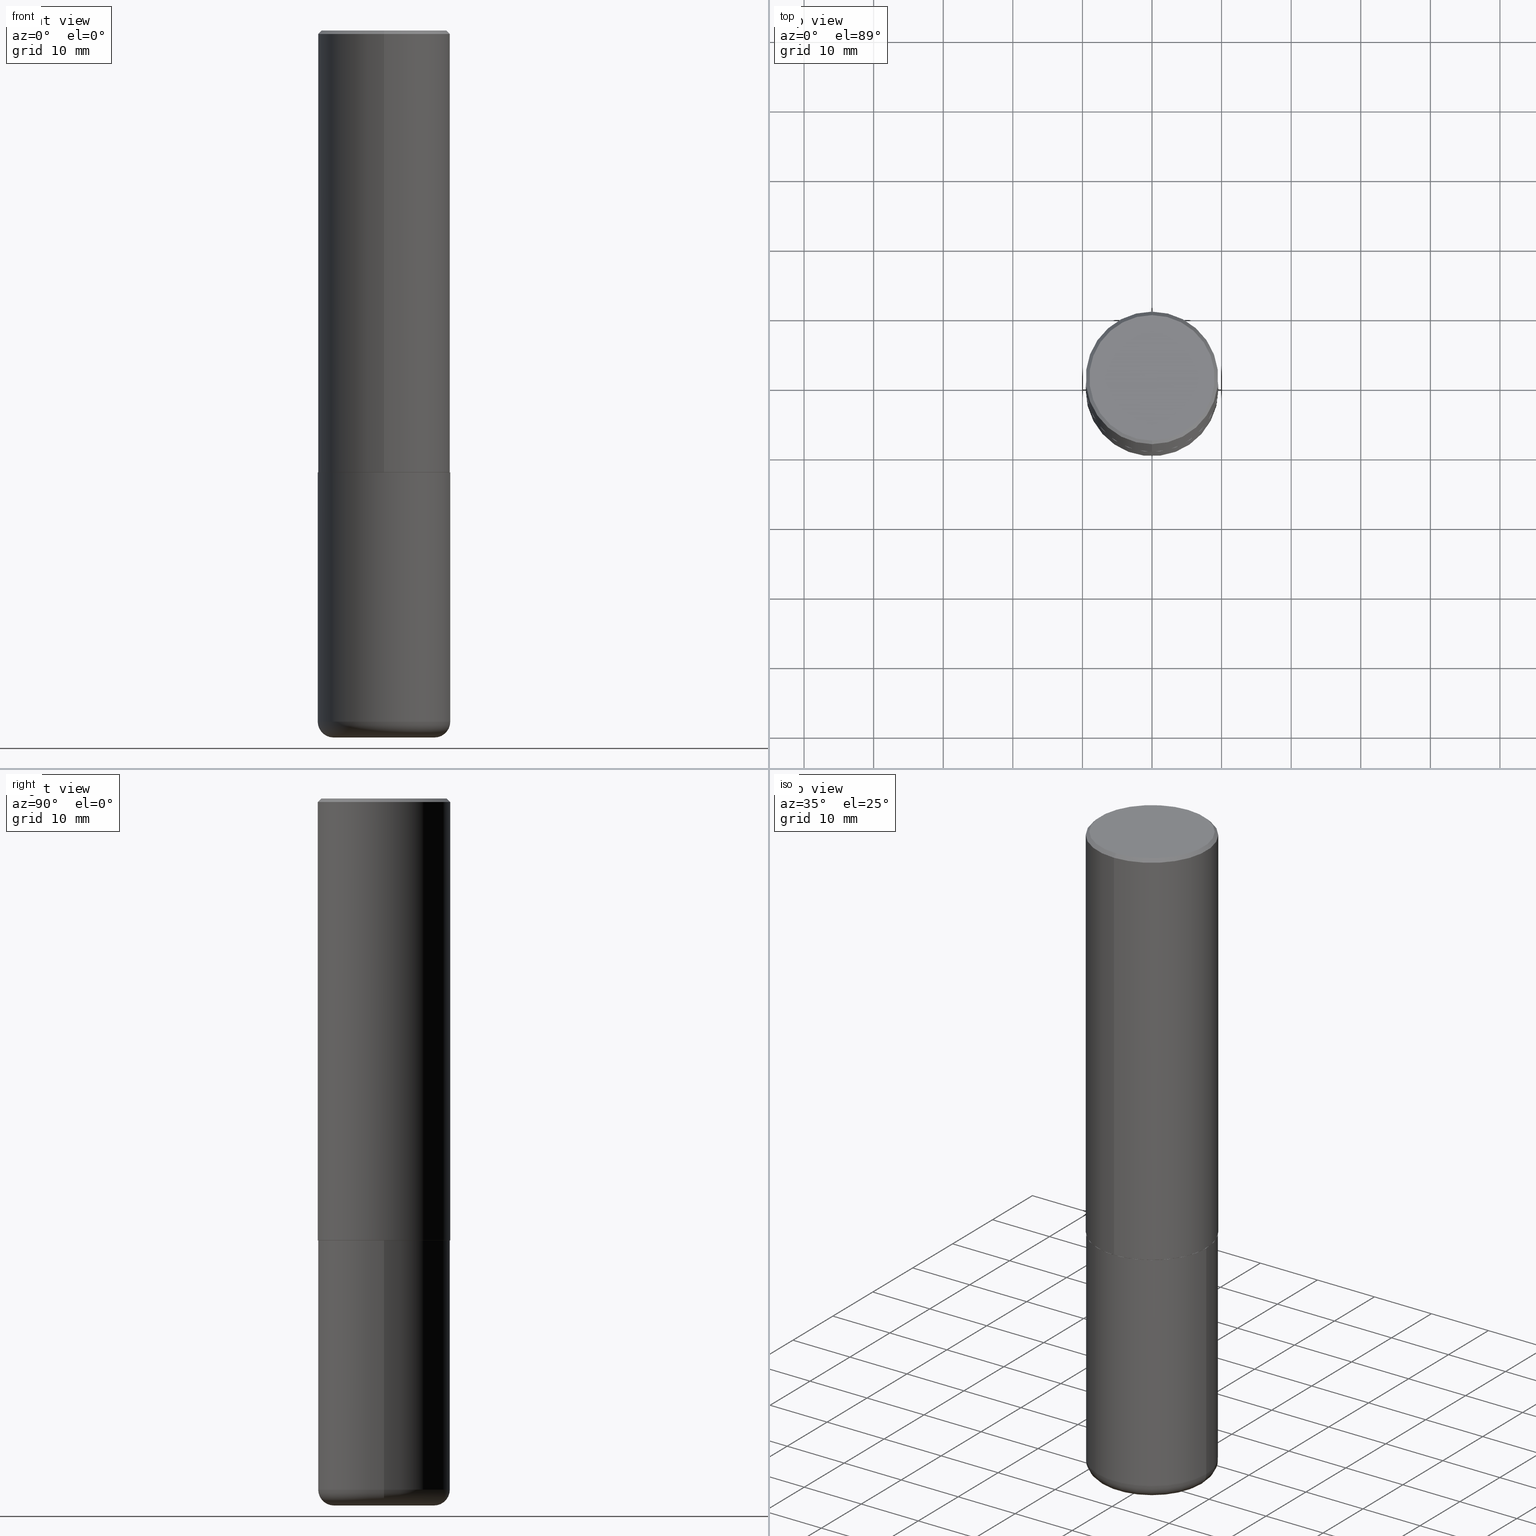
[diagram: canonical four-view strip — front | top / right | iso, engineering-drawing reading convention]
A machine part, canonical four-view strip (front | top / right | iso — engineering-drawing reading convention). The complete STEP part file that produces these views, byte-faithful:
ISO-10303-21;
HEADER;
FILE_DESCRIPTION (( 'STEP AP203' ),
    '1' );
FILE_NAME ('38390.STEP',
    '2024-03-03T02:29:07',
    ( '' ),
    ( '' ),
    'SwSTEP 2.0',
    'SolidWorks 2023',
    '' );
FILE_SCHEMA (( 'CONFIG_CONTROL_DESIGN' ));
ENDSEC;

DATA;
#1 = CARTESIAN_POINT ( 'NONE',  ( 2.548781377355486718E-15, 0.3549999999999997602, -1.008976200823893402E-15 ) ) ;
#2 = ORIENTED_EDGE ( 'NONE', *, *, #330, .T. ) ;
#3 = SHAPE_DEFINITION_REPRESENTATION ( #379, #44 ) ;
#4 = CARTESIAN_POINT ( 'NONE',  ( 9.561783032183883600E-29, -1.365169203487670064E-14, -3.910000000000000142 ) ) ;
#5 = CIRCLE ( 'NONE', #203, 0.3750000000000002776 ) ;
#6 = FACE_OUTER_BOUND ( 'NONE', #83, .T. ) ;
#7 = EDGE_LOOP ( 'NONE', ( #286, #157 ) ) ;
#8 = CARTESIAN_POINT ( 'NONE',  ( 9.561783032183883600E-29, -1.365169203487670064E-14, -3.910000000000000142 ) ) ;
#9 = AXIS2_PLACEMENT_3D ( 'NONE', #140, #389, #101 ) ;
#10 = CC_DESIGN_APPROVAL ( #367, ( #318 ) ) ;
#11 = DIRECTION ( 'NONE',  ( 2.444395862887114472E-29, -3.493017854714053009E-15, -1.000000000000000000 ) ) ;
#12 = CARTESIAN_POINT ( 'NONE',  ( 0.3749999999999999445, -2.618611004132349622E-15, 1.828566290923475642E-29 ) ) ;
#13 = ADVANCED_FACE ( 'NONE', ( #327 ), #171, .T. ) ;
#14 = CARTESIAN_POINT ( 'NONE',  ( 0.2850000000000000311, -1.595606971851316740E-14, -4.000000000000000000 ) ) ;
#15 = CARTESIAN_POINT ( 'NONE',  ( 6.113672015462840371E-29, -8.728703347107863365E-15, -2.499999999999999556 ) ) ;
#16 = ORIENTED_EDGE ( 'NONE', *, *, #109, .F. ) ;
#17 = DIRECTION ( 'NONE',  ( -2.445468806185136597E-29, 3.491481338843145583E-15, 1.000000000000000000 ) ) ;
#18 = ORIENTED_EDGE ( 'NONE', *, *, #370, .F. ) ;
#19 = ADVANCED_FACE ( 'NONE', ( #58 ), #170, .T. ) ;
#20 = CIRCLE ( 'NONE', #403, 0.08999999999999992728 ) ;
#21 = AXIS2_PLACEMENT_3D ( 'NONE', #368, #110, #24 ) ;
#22 = DIRECTION ( 'NONE',  ( 5.024295867787889629E-15, 0.7071067811865257013, 0.7071067811865691111 ) ) ;
#23 = ORIENTED_EDGE ( 'NONE', *, *, #330, .F. ) ;
#24 = DIRECTION ( 'NONE',  ( -6.982962677686266711E-15, -1.000000000000000000, 3.493017854714052220E-15 ) ) ;
#25 = ORIENTED_EDGE ( 'NONE', *, *, #164, .F. ) ;
#26 = FACE_OUTER_BOUND ( 'NONE', #65, .T. ) ;
#27 = ADVANCED_FACE ( 'NONE', ( #26 ), #361, .T. ) ;
#28 = FACE_OUTER_BOUND ( 'NONE', #32, .T. ) ;
#29 = AXIS2_PLACEMENT_3D ( 'NONE', #15, #17, #150 ) ;
#30 = CARTESIAN_POINT ( 'NONE',  ( 2.478951750578623026E-15, 0.3549999999999997602, -1.124498769623690920E-15 ) ) ;
#31 = APPLICATION_PROTOCOL_DEFINITION ( 'international standard', 'config_control_design', 1994, #242 ) ;
#32 = EDGE_LOOP ( 'NONE', ( #343, #93 ) ) ;
#33 = PRODUCT_RELATED_PRODUCT_CATEGORY ( 'detail', '', ( #125 ) ) ;
#34 = PERSON_AND_ORGANIZATION ( #237, #76 ) ;
#35 = FACE_OUTER_BOUND ( 'NONE', #7, .T. ) ;
#36 = VECTOR ( 'NONE', #70, 39.37007874015748143 ) ;
#37 = PERSON_AND_ORGANIZATION ( #237, #76 ) ;
#38 = CC_DESIGN_DATE_AND_TIME_ASSIGNMENT ( #382, #92, ( #66 ) ) ;
#39 = DIRECTION ( 'NONE',  ( 1.000000000000000000, -6.982962677686263555E-15, 0.000000000000000000 ) ) ;
#40 = CIRCLE ( 'NONE', #108, 0.3749999999999999445 ) ;
#41 = AXIS2_PLACEMENT_3D ( 'NONE', #218, #408, #118 ) ;
#42 = CARTESIAN_POINT ( 'NONE',  ( 0.2850000000000000311, -1.564183639801728729E-14, -3.910000000000000142 ) ) ;
#43 = EDGE_CURVE ( 'NONE', #117, #185, #383, .T. ) ;
#44 = ADVANCED_BREP_SHAPE_REPRESENTATION ( '38390', ( #390, #254, #236 ), #152 ) ;
#45 = CIRCLE ( 'NONE', #146, 0.3750000000000000555 ) ;
#46 = CARTESIAN_POINT ( 'NONE',  ( -5.647657784886327300E-45, 8.070447908802484547E-31, 2.310451375995943946E-16 ) ) ;
#47 = ORIENTED_EDGE ( 'NONE', *, *, #56, .T. ) ;
#48 = ORIENTED_EDGE ( 'NONE', *, *, #90, .T. ) ;
#49 = CARTESIAN_POINT ( 'NONE',  ( 6.110989657217786461E-29, -8.732544636785133509E-15, -2.500000000000000000 ) ) ;
#50 = ORIENTED_EDGE ( 'NONE', *, *, #131, .T. ) ;
#51 = APPROVAL_PERSON_ORGANIZATION ( #37, #367, #233 ) ;
#52 = CARTESIAN_POINT ( 'NONE',  ( -0.3750000000000000555, -8.525662431891907096E-15, -2.499999999999999556 ) ) ;
#53 = ORIENTED_EDGE ( 'NONE', *, *, #176, .F. ) ;
#54 = ORIENTED_EDGE ( 'NONE', *, *, #246, .F. ) ;
#55 = COORDINATED_UNIVERSAL_TIME_OFFSET ( 5, 0, .BEHIND. ) ;
#56 = EDGE_CURVE ( 'NONE', #391, #313, #135, .T. ) ;
#57 =( LENGTH_UNIT ( ) NAMED_UNIT ( * ) SI_UNIT ( $, .METRE. ) );
#58 = FACE_OUTER_BOUND ( 'NONE', #81, .T. ) ;
#59 = COORDINATED_UNIVERSAL_TIME_OFFSET ( 5, 0, .BEHIND. ) ;
#60 = DIRECTION ( 'NONE',  ( 1.000000000000000000, -6.982962677686266711E-15, 4.876176775795935793E-29 ) ) ;
#61 = CIRCLE ( 'NONE', #306, 0.3749999999999999445 ) ;
#62 = VECTOR ( 'NONE', #184, 39.37007874015748143 ) ;
#63 = DIRECTION ( 'NONE',  ( 1.000000000000000000, -6.982962677686266711E-15, 0.000000000000000000 ) ) ;
#64 = PERSON_AND_ORGANIZATION_ROLE ( 'creator' ) ;
#65 = EDGE_LOOP ( 'NONE', ( #217, #244 ) ) ;
#66 = PRODUCT_DEFINITION ( 'UNKNOWN', '', #318, #72 ) ;
#67 = CARTESIAN_POINT ( 'NONE',  ( 0.000000000000000000, 0.000000000000000000, 0.000000000000000000 ) ) ;
#68 = ORIENTED_EDGE ( 'NONE', *, *, #341, .T. ) ;
#69 = EDGE_CURVE ( 'NONE', #332, #347, #202, .T. ) ;
#70 = DIRECTION ( 'NONE',  ( -2.445468806185136877E-29, 3.491481338843145188E-15, 1.000000000000000000 ) ) ;
#71 = AXIS2_PLACEMENT_3D ( 'NONE', #4, #268, #295 ) ;
#72 = DESIGN_CONTEXT ( 'detailed design', #242, 'design' ) ;
#73 = CARTESIAN_POINT ( 'NONE',  ( 4.888791725774251015E-31, -6.986035709428135453E-17, -0.02000000000000008715 ) ) ;
#74 = DIRECTION ( 'NONE',  ( -6.982962677686266711E-15, -1.000000000000000000, 2.921762560068730595E-15 ) ) ;
#75 = DIRECTION ( 'NONE',  ( 1.000000000000000000, -6.982962677686273810E-15, 0.000000000000000000 ) ) ;
#76 = ORGANIZATION ( 'UNSPECIFIED', 'UNSPECIFIED', '' ) ;
#77 = UNCERTAINTY_MEASURE_WITH_UNIT (LENGTH_MEASURE( 1.000000000000000082E-05 ), #191, 'distance_accuracy_value', 'NONE');
#78 = DIRECTION ( 'NONE',  ( -6.982962677686266711E-15, -1.000000000000000000, 2.913971193241878794E-15 ) ) ;
#79 = ORIENTED_EDGE ( 'NONE', *, *, #289, .F. ) ;
#80 = DIRECTION ( 'NONE',  ( -2.444395862887114472E-29, 3.493017854714053009E-15, 1.000000000000000000 ) ) ;
#81 = EDGE_LOOP ( 'NONE', ( #315, #317, #373, #412 ) ) ;
#82 = CARTESIAN_POINT ( 'NONE',  ( 2.657429831742835431E-15, 0.3739999999999912839, -2.500000000000001332 ) ) ;
#83 = EDGE_LOOP ( 'NONE', ( #128, #48, #320, #25 ) ) ;
#84 = DIRECTION ( 'NONE',  ( 7.105427357601001859E-15, 1.000000000000000000, -3.491481338843145583E-15 ) ) ;
#85 = ORIENTED_EDGE ( 'NONE', *, *, #272, .T. ) ;
#86 = AXIS2_PLACEMENT_3D ( 'NONE', #226, #197, #355 ) ;
#87 = CONICAL_SURFACE ( 'NONE', #227, 0.3750000000000000555, 0.7853981633974471688 ) ;
#88 =( NAMED_UNIT ( * ) PLANE_ANGLE_UNIT ( ) SI_UNIT ( $, .RADIAN. ) );
#89 = EDGE_LOOP ( 'NONE', ( #377, #151, #54, #53 ) ) ;
#90 = EDGE_CURVE ( 'NONE', #182, #228, #161, .T. ) ;
#91 = PERSON_AND_ORGANIZATION ( #237, #76 ) ;
#92 = DATE_TIME_ROLE ( 'creation_date' ) ;
#93 = ORIENTED_EDGE ( 'NONE', *, *, #309, .F. ) ;
#94 = PERSON_AND_ORGANIZATION_ROLE ( 'design_owner' ) ;
#95 = FACE_OUTER_BOUND ( 'NONE', #284, .T. ) ;
#96 = ADVANCED_FACE ( 'NONE', ( #35 ), #102, .F. ) ;
#97 = AXIS2_PLACEMENT_3D ( 'NONE', #99, #262, #269 ) ;
#98 = VECTOR ( 'NONE', #22, 39.37007874015748854 ) ;
#99 = CARTESIAN_POINT ( 'NONE',  ( 9.781875224740546387E-29, -1.396592535537258233E-14, -4.000000000000000000 ) ) ;
#100 = APPROVAL_ROLE ( '' ) ;
#101 = DIRECTION ( 'NONE',  ( -1.000000000000000000, 6.982962677686265922E-15, -4.876176775795935793E-29 ) ) ;
#102 = PLANE ( 'NONE',  #9 ) ;
#103 = ADVANCED_FACE ( 'NONE', ( #95 ), #290, .F. ) ;
#104 = CARTESIAN_POINT ( 'NONE',  ( 0.3750000000000000555, -1.134731435124021180E-14, -2.499999999999999556 ) ) ;
#105 = EDGE_CURVE ( 'NONE', #400, #185, #229, .T. ) ;
#106 = CARTESIAN_POINT ( 'NONE',  ( -0.2850000000000000311, -1.146401766711631116E-14, -4.000000000000000000 ) ) ;
#107 = CLOSED_SHELL ( 'NONE', ( #362, #376, #96, #210, #413, #27 ) ) ;
#108 = AXIS2_PLACEMENT_3D ( 'NONE', #8, #143, #39 ) ;
#109 = EDGE_CURVE ( 'NONE', #148, #332, #61, .T. ) ;
#110 = DIRECTION ( 'NONE',  ( -2.444395862887114472E-29, 3.493017854714053009E-15, 1.000000000000000000 ) ) ;
#111 = EDGE_LOOP ( 'NONE', ( #345, #120, #85, #18 ) ) ;
#112 = DIRECTION ( 'NONE',  ( -2.444395862887114472E-29, 3.493017854714053009E-15, 1.000000000000000000 ) ) ;
#113 = EDGE_LOOP ( 'NONE', ( #375, #253, #222, #79 ) ) ;
#114 = AXIS2_PLACEMENT_3D ( 'NONE', #294, #418, #384 ) ;
#115 = AXIS2_PLACEMENT_3D ( 'NONE', #49, #112, #241 ) ;
#116 = CARTESIAN_POINT ( 'NONE',  ( 2.660982545421636724E-15, 0.3739999999999912839, -2.500000000000001332 ) ) ;
#117 = VERTEX_POINT ( 'NONE', #416 ) ;
#118 = DIRECTION ( 'NONE',  ( 1.000000000000000000, -6.982962677686266711E-15, 0.000000000000000000 ) ) ;
#119 = APPROVAL ( #198, 'UNSPECIFIED' ) ;
#120 = ORIENTED_EDGE ( 'NONE', *, *, #394, .T. ) ;
#121 = PERSON_AND_ORGANIZATION_ROLE ( 'classification_officer' ) ;
#122 = CARTESIAN_POINT ( 'NONE',  ( -0.2850000000000000311, -1.162664523796041410E-14, -3.910000000000000142 ) ) ;
#123 = ADVANCED_FACE ( 'NONE', ( #28 ), #163, .F. ) ;
#124 = EDGE_LOOP ( 'NONE', ( #406, #68, #50, #189 ) ) ;
#125 = PRODUCT ( '38390', '38390', '', ( #261 ) ) ;
#126 = APPROVAL_PERSON_ORGANIZATION ( #221, #155, #100 ) ;
#127 = COORDINATED_UNIVERSAL_TIME_OFFSET ( 5, 0, .BEHIND. ) ;
#128 = ORIENTED_EDGE ( 'NONE', *, *, #337, .F. ) ;
#129 = CARTESIAN_POINT ( 'NONE',  ( -2.611628041454602471E-15, -0.3740000000000087699, -2.499999999999999112 ) ) ;
#130 = CARTESIAN_POINT ( 'NONE',  ( 6.110989657217786461E-29, -8.732544636785133509E-15, -2.500000000000000000 ) ) ;
#131 = EDGE_CURVE ( 'NONE', #183, #185, #174, .T. ) ;
#132 = PERSON_AND_ORGANIZATION_ROLE ( 'design_supplier' ) ;
#133 = CC_DESIGN_PERSON_AND_ORGANIZATION_ASSIGNMENT ( #266, #121, ( #220 ) ) ;
#134 = CARTESIAN_POINT ( 'NONE',  ( 0.000000000000000000, 0.000000000000000000, 0.000000000000000000 ) ) ;
#135 = CIRCLE ( 'NONE', #397, 0.3739999999999999991 ) ;
#136 = CONICAL_SURFACE ( 'NONE', #213, 0.3739999999999999991, 0.7853981633974141952 ) ;
#137 = DIRECTION ( 'NONE',  ( -6.982962677686266711E-15, -1.000000000000000000, 2.921762560068730595E-15 ) ) ;
#138 = APPROVAL_STATUS ( 'not_yet_approved' ) ;
#139 = EDGE_CURVE ( 'NONE', #228, #148, #20, .T. ) ;
#140 = CARTESIAN_POINT ( 'NONE',  ( 6.113672015462840371E-29, -8.728703347107863365E-15, -2.499999999999999556 ) ) ;
#141 = ADVANCED_FACE ( 'NONE', ( #308 ), #175, .T. ) ;
#142 = AXIS2_PLACEMENT_3D ( 'NONE', #167, #352, #322 ) ;
#143 = DIRECTION ( 'NONE',  ( -2.445468806185136597E-29, 3.491481338843145583E-15, 1.000000000000000000 ) ) ;
#144 = DIRECTION ( 'NONE',  ( 6.982962677686265922E-15, 1.000000000000000000, -3.494488891895536035E-15 ) ) ;
#145 = CYLINDRICAL_SURFACE ( 'NONE', #386, 0.3749999999999999445 ) ;
#146 = AXIS2_PLACEMENT_3D ( 'NONE', #401, #399, #405 ) ;
#147 = CARTESIAN_POINT ( 'NONE',  ( -2.618611004132351200E-15, -0.3750000000000001665, 1.309881695517770421E-15 ) ) ;
#148 = VERTEX_POINT ( 'NONE', #205 ) ;
#149 = ORIENTED_EDGE ( 'NONE', *, *, #43, .T. ) ;
#150 = DIRECTION ( 'NONE',  ( 1.000000000000000000, -6.982962677686264344E-15, 0.000000000000000000 ) ) ;
#151 = ORIENTED_EDGE ( 'NONE', *, *, #69, .T. ) ;
#152 =( GEOMETRIC_REPRESENTATION_CONTEXT ( 3 ) GLOBAL_UNCERTAINTY_ASSIGNED_CONTEXT ( ( #77 ) ) GLOBAL_UNIT_ASSIGNED_CONTEXT ( ( #191, #88, #349 ) ) REPRESENTATION_CONTEXT ( 'NONE', 'WORKASPACE' ) );
#153 = DIRECTION ( 'NONE',  ( -1.000000000000000000, 7.105427357600996337E-15, 0.000000000000000000 ) ) ;
#154 = VERTEX_POINT ( 'NONE', #104 ) ;
#155 = APPROVAL ( #138, 'UNSPECIFIED' ) ;
#156 = CYLINDRICAL_SURFACE ( 'NONE', #301, 0.3749999999999999445 ) ;
#157 = ORIENTED_EDGE ( 'NONE', *, *, #289, .T. ) ;
#158 = APPROVAL_DATE_TIME ( #169, #155 ) ;
#159 = DIRECTION ( 'NONE',  ( 2.444395862887114472E-29, -3.493017854714053009E-15, -1.000000000000000000 ) ) ;
#160 = DATE_AND_TIME ( #325, #417 ) ;
#161 = CIRCLE ( 'NONE', #274, 0.2850000000000000311 ) ;
#162 = LOCAL_TIME ( 21, 29, 7.000000000000000000, #55 ) ;
#163 = PLANE ( 'NONE',  #114 ) ;
#164 = EDGE_CURVE ( 'NONE', #332, #148, #40, .T. ) ;
#165 = DIRECTION ( 'NONE',  ( -6.982962677686266711E-15, -1.000000000000000000, 2.913971193241878794E-15 ) ) ;
#166 = DIRECTION ( 'NONE',  ( -2.444395862887114472E-29, 3.493017854714053009E-15, 1.000000000000000000 ) ) ;
#167 = CARTESIAN_POINT ( 'NONE',  ( 4.888791725774251015E-31, -6.986035709428135453E-17, -0.02000000000000008715 ) ) ;
#168 = DIRECTION ( 'NONE',  ( -2.444395862887114192E-29, 3.493017854714053009E-15, 1.000000000000000000 ) ) ;
#169 = DATE_AND_TIME ( #188, #398 ) ;
#170 = CONICAL_SURFACE ( 'NONE', #179, 0.3739999999999999991, 0.7853981633974141952 ) ;
#171 = CYLINDRICAL_SURFACE ( 'NONE', #300, 0.3750000000000001665 ) ;
#172 = ADVANCED_FACE ( 'NONE', ( #365 ), #136, .T. ) ;
#173 = FACE_OUTER_BOUND ( 'NONE', #321, .T. ) ;
#174 = CIRCLE ( 'NONE', #86, 0.3750000000000000555 ) ;
#175 = CONICAL_SURFACE ( 'NONE', #291, 0.3750000000000000555, 0.7853981633974471688 ) ;
#176 = EDGE_CURVE ( 'NONE', #148, #154, #396, .T. ) ;
#177 = CARTESIAN_POINT ( 'NONE',  ( 0.000000000000000000, 0.000000000000000000, 0.000000000000000000 ) ) ;
#178 = FACE_OUTER_BOUND ( 'NONE', #187, .T. ) ;
#179 = AXIS2_PLACEMENT_3D ( 'NONE', #299, #265, #137 ) ;
#180 = LOCAL_TIME ( 21, 29, 7.000000000000000000, #127 ) ;
#181 = LINE ( 'NONE', #311, #324 ) ;
#182 = VERTEX_POINT ( 'NONE', #106 ) ;
#183 = VERTEX_POINT ( 'NONE', #235 ) ;
#184 = DIRECTION ( 'NONE',  ( -2.444395862887114192E-29, 3.493017854714053009E-15, 1.000000000000000000 ) ) ;
#185 = VERTEX_POINT ( 'NONE', #209 ) ;
#186 = DIRECTION ( 'NONE',  ( -4.851104656540957964E-15, -0.7071067811865491270, -0.7071067811865459074 ) ) ;
#187 = EDGE_LOOP ( 'NONE', ( #240, #23, #402, #277 ) ) ;
#188 = CALENDAR_DATE ( 2024, 2, 3 ) ;
#189 = ORIENTED_EDGE ( 'NONE', *, *, #105, .F. ) ;
#190 = CC_DESIGN_PERSON_AND_ORGANIZATION_ASSIGNMENT ( #34, #94, ( #125 ) ) ;
#191 =( CONVERSION_BASED_UNIT ( 'INCH', #331 ) LENGTH_UNIT ( ) NAMED_UNIT ( #381 ) );
#192 = DIRECTION ( 'NONE',  ( -2.445468806185136597E-29, 3.491481338843145583E-15, 1.000000000000000000 ) ) ;
#193 = AXIS2_PLACEMENT_3D ( 'NONE', #298, #302, #264 ) ;
#194 = AXIS2_PLACEMENT_3D ( 'NONE', #283, #411, #374 ) ;
#195 = FACE_OUTER_BOUND ( 'NONE', #342, .T. ) ;
#196 = CC_DESIGN_SECURITY_CLASSIFICATION ( #220, ( #318 ) ) ;
#197 = DIRECTION ( 'NONE',  ( -2.444395862887114472E-29, 3.493017854714053009E-15, 1.000000000000000000 ) ) ;
#198 = APPROVAL_STATUS ( 'not_yet_approved' ) ;
#199 = APPLICATION_CONTEXT ( 'configuration controlled 3d designs of mechanical parts and assemblies' ) ;
#200 = DIRECTION ( 'NONE',  ( 0.000000000000000000, 0.000000000000000000, 1.000000000000000000 ) ) ;
#201 = DIRECTION ( 'NONE',  ( -2.444395862887114472E-29, 3.493017854714053009E-15, 1.000000000000000000 ) ) ;
#202 = LINE ( 'NONE', #329, #36 ) ;
#203 = AXIS2_PLACEMENT_3D ( 'NONE', #378, #80, #78 ) ;
#204 = CARTESIAN_POINT ( 'NONE',  ( 9.561783032183883600E-29, -1.365169203487670064E-14, -3.910000000000000142 ) ) ;
#205 = CARTESIAN_POINT ( 'NONE',  ( 0.3749999999999999445, -1.627030303900904751E-14, -3.910000000000000142 ) ) ;
#206 = DIRECTION ( 'NONE',  ( -2.445468806185136877E-29, 3.491481338843145188E-15, 1.000000000000000000 ) ) ;
#207 = CC_DESIGN_PERSON_AND_ORGANIZATION_ASSIGNMENT ( #410, #132, ( #318 ) ) ;
#208 = CIRCLE ( 'NONE', #372, 0.08999999999999992728 ) ;
#209 = CARTESIAN_POINT ( 'NONE',  ( 2.618611004132350411E-15, 0.3749999999999999445, -0.02000000000000139513 ) ) ;
#210 = ADVANCED_FACE ( 'NONE', ( #338 ), #145, .T. ) ;
#211 = DIRECTION ( 'NONE',  ( -6.982962677686266711E-15, -1.000000000000000000, 3.493017854714052220E-15 ) ) ;
#212 = ORIENTED_EDGE ( 'NONE', *, *, #339, .T. ) ;
#213 = AXIS2_PLACEMENT_3D ( 'NONE', #393, #395, #74 ) ;
#214 = ORIENTED_EDGE ( 'NONE', *, *, #139, .F. ) ;
#215 = DIRECTION ( 'NONE',  ( 2.444395862887114472E-29, -3.493017854714053009E-15, -1.000000000000000000 ) ) ;
#216 = ADVANCED_FACE ( 'NONE', ( #173 ), #276, .T. ) ;
#217 = ORIENTED_EDGE ( 'NONE', *, *, #339, .F. ) ;
#218 = CARTESIAN_POINT ( 'NONE',  ( 9.781875224740546387E-29, -1.396592535537258233E-14, -4.000000000000000000 ) ) ;
#219 = ORIENTED_EDGE ( 'NONE', *, *, #312, .T. ) ;
#220 = SECURITY_CLASSIFICATION ( '', '', #287 ) ;
#221 = PERSON_AND_ORGANIZATION ( #237, #76 ) ;
#222 = ORIENTED_EDGE ( 'NONE', *, *, #176, .T. ) ;
#223 = COORDINATED_UNIVERSAL_TIME_OFFSET ( 5, 0, .BEHIND. ) ;
#224 = CARTESIAN_POINT ( 'NONE',  ( 6.108545261354898806E-29, -8.729051618930418030E-15, -2.498999999999999666 ) ) ;
#225 = DIRECTION ( 'NONE',  ( -6.982962677686266711E-15, -1.000000000000000000, 2.921762560068730595E-15 ) ) ;
#226 = CARTESIAN_POINT ( 'NONE',  ( 4.888791725774251015E-31, -6.986035709428135453E-17, -0.02000000000000008715 ) ) ;
#227 = AXIS2_PLACEMENT_3D ( 'NONE', #249, #215, #278 ) ;
#228 = VERTEX_POINT ( 'NONE', #14 ) ;
#229 = LINE ( 'NONE', #360, #363 ) ;
#230 = DIRECTION ( 'NONE',  ( 4.937700262164541731E-15, 0.7071067811865442421, -0.7071067811865507924 ) ) ;
#231 = CIRCLE ( 'NONE', #115, 0.3739999999999999991 ) ;
#232 = EDGE_CURVE ( 'NONE', #380, #400, #275, .T. ) ;
#233 = APPROVAL_ROLE ( '' ) ;
#234 = CLOSED_SHELL ( 'NONE', ( #172, #216, #141, #251, #13, #19, #123, #103 ) ) ;
#235 = CARTESIAN_POINT ( 'NONE',  ( -2.572686749164323547E-15, -0.3750000000000001110, -0.01999999999999877570 ) ) ;
#236 = AXIS2_PLACEMENT_3D ( 'NONE', #67, #200, #328 ) ;
#237 = PERSON ( 'UNSPECIFIED', 'UNSPECIFIED', 'UNSPECIFIED', ('UNSPECIFIED'), ('UNSPECIFIED'), ('UNSPECIFIED') ) ;
#238 = DIRECTION ( 'NONE',  ( 1.000000000000000000, -6.982962677686266711E-15, 4.876176775795935793E-29 ) ) ;
#239 = EDGE_CURVE ( 'NONE', #391, #369, #181, .T. ) ;
#240 = ORIENTED_EDGE ( 'NONE', *, *, #341, .F. ) ;
#241 = DIRECTION ( 'NONE',  ( -6.982962677686266711E-15, -1.000000000000000000, 2.921762560068730595E-15 ) ) ;
#242 = APPLICATION_CONTEXT ( 'configuration controlled 3d designs of mechanical parts and assemblies' ) ;
#243 = AXIS2_PLACEMENT_3D ( 'NONE', #30, #159, #323 ) ;
#244 = ORIENTED_EDGE ( 'NONE', *, *, #90, .F. ) ;
#245 = CIRCLE ( 'NONE', #21, 0.3549999999999997602 ) ;
#246 = EDGE_CURVE ( 'NONE', #154, #347, #366, .T. ) ;
#247 = LINE ( 'NONE', #82, #98 ) ;
#248 = ORIENTED_EDGE ( 'NONE', *, *, #232, .T. ) ;
#249 = CARTESIAN_POINT ( 'NONE',  ( 4.888791725774251015E-31, -6.986035709428135453E-17, -0.02000000000000008715 ) ) ;
#250 = ORIENTED_EDGE ( 'NONE', *, *, #312, .F. ) ;
#251 = ADVANCED_FACE ( 'NONE', ( #178 ), #87, .T. ) ;
#252 = CARTESIAN_POINT ( 'NONE',  ( -2.572686749164323547E-15, -0.3750000000000001110, -0.01999999999999877570 ) ) ;
#253 = ORIENTED_EDGE ( 'NONE', *, *, #164, .T. ) ;
#254 = MANIFOLD_SOLID_BREP ( 'Body-Move/Copy2[2]', #234 ) ;
#255 = CC_DESIGN_DATE_AND_TIME_ASSIGNMENT ( #292, #257, ( #220 ) ) ;
#256 = AXIS2_PLACEMENT_3D ( 'NONE', #46, #314, #211 ) ;
#257 = DATE_TIME_ROLE ( 'classification_date' ) ;
#258 = CALENDAR_DATE ( 2024, 2, 3 ) ;
#259 = DIRECTION ( 'NONE',  ( -6.982962677686266711E-15, -1.000000000000000000, 3.493017854714053009E-15 ) ) ;
#260 = CALENDAR_DATE ( 2024, 2, 3 ) ;
#261 = MECHANICAL_CONTEXT ( 'NONE', #199, 'mechanical' ) ;
#262 = DIRECTION ( 'NONE',  ( 2.438088387897960049E-29, -3.491481338843145188E-15, -1.000000000000000000 ) ) ;
#263 = APPROVAL_ROLE ( '' ) ;
#264 = DIRECTION ( 'NONE',  ( 1.000000000000000000, -6.982962677686263555E-15, 4.883557194083111219E-29 ) ) ;
#265 = DIRECTION ( 'NONE',  ( -2.444395862887114472E-29, 3.493017854714053009E-15, 1.000000000000000000 ) ) ;
#266 = PERSON_AND_ORGANIZATION ( #237, #76 ) ;
#267 = VECTOR ( 'NONE', #206, 39.37007874015748143 ) ;
#268 = DIRECTION ( 'NONE',  ( -2.445468806185136597E-29, 3.491481338843145583E-15, 1.000000000000000000 ) ) ;
#269 = DIRECTION ( 'NONE',  ( -1.000000000000000000, 6.982962677686265922E-15, -4.876176775795935793E-29 ) ) ;
#270 = DIRECTION ( 'NONE',  ( -2.444395862887114472E-29, 3.493017854714053009E-15, 1.000000000000000000 ) ) ;
#271 = DIRECTION ( 'NONE',  ( -2.445468806185136597E-29, 3.491481338843145583E-15, 1.000000000000000000 ) ) ;
#272 = EDGE_CURVE ( 'NONE', #369, #183, #344, .T. ) ;
#273 = LOCAL_TIME ( 21, 29, 7.000000000000000000, #223 ) ;
#274 = AXIS2_PLACEMENT_3D ( 'NONE', #353, #271, #63 ) ;
#275 = CIRCLE ( 'NONE', #256, 0.3549999999999997602 ) ;
#276 = CYLINDRICAL_SURFACE ( 'NONE', #194, 0.3750000000000001665 ) ;
#277 = ORIENTED_EDGE ( 'NONE', *, *, #370, .T. ) ;
#278 = DIRECTION ( 'NONE',  ( 6.982962677686265922E-15, 1.000000000000000000, -3.494488891895536035E-15 ) ) ;
#279 = ORIENTED_EDGE ( 'NONE', *, *, #239, .F. ) ;
#280 = DIRECTION ( 'NONE',  ( -4.937700262164378437E-15, -0.7071067811865208164, 0.7071067811865739960 ) ) ;
#281 = ORIENTED_EDGE ( 'NONE', *, *, #333, .T. ) ;
#282 = CIRCLE ( 'NONE', #348, 0.3750000000000002776 ) ;
#283 = CARTESIAN_POINT ( 'NONE',  ( 0.000000000000000000, 0.000000000000000000, 0.000000000000000000 ) ) ;
#284 = EDGE_LOOP ( 'NONE', ( #2, #248 ) ) ;
#285 = CARTESIAN_POINT ( 'NONE',  ( 0.000000000000000000, 0.000000000000000000, 0.000000000000000000 ) ) ;
#286 = ORIENTED_EDGE ( 'NONE', *, *, #246, .T. ) ;
#287 = SECURITY_CLASSIFICATION_LEVEL ( 'unclassified' ) ;
#288 = PERSON_AND_ORGANIZATION ( #237, #76 ) ;
#289 = EDGE_CURVE ( 'NONE', #347, #154, #45, .T. ) ;
#290 = PLANE ( 'NONE',  #243 ) ;
#291 = AXIS2_PLACEMENT_3D ( 'NONE', #73, #11, #144 ) ;
#292 = DATE_AND_TIME ( #414, #162 ) ;
#293 = CC_DESIGN_APPROVAL ( #119, ( #220 ) ) ;
#294 = CARTESIAN_POINT ( 'NONE',  ( 6.110989657217786461E-29, -8.732544636785133509E-15, -2.500000000000000000 ) ) ;
#295 = DIRECTION ( 'NONE',  ( 1.000000000000000000, -6.982962677686263555E-15, 4.883557194083111219E-29 ) ) ;
#296 = DIRECTION ( 'NONE',  ( 1.000000000000000000, -6.982962677686263555E-15, 0.000000000000000000 ) ) ;
#297 = PERSON_AND_ORGANIZATION ( #237, #76 ) ;
#298 = CARTESIAN_POINT ( 'NONE',  ( 9.561783032183883600E-29, -1.365169203487670064E-14, -3.910000000000000142 ) ) ;
#299 = CARTESIAN_POINT ( 'NONE',  ( 6.110989657217786461E-29, -8.732544636785133509E-15, -2.500000000000000000 ) ) ;
#300 = AXIS2_PLACEMENT_3D ( 'NONE', #134, #201, #259 ) ;
#301 = AXIS2_PLACEMENT_3D ( 'NONE', #285, #340, #60 ) ;
#302 = DIRECTION ( 'NONE',  ( -2.445468806185136597E-29, 3.491481338843145583E-15, 1.000000000000000000 ) ) ;
#303 = ORIENTED_EDGE ( 'NONE', *, *, #272, .F. ) ;
#304 = CC_DESIGN_PERSON_AND_ORGANIZATION_ASSIGNMENT ( #297, #64, ( #318 ) ) ;
#305 = APPROVAL_STATUS ( 'not_yet_approved' ) ;
#306 = AXIS2_PLACEMENT_3D ( 'NONE', #204, #192, #296 ) ;
#307 = VECTOR ( 'NONE', #186, 39.37007874015748143 ) ;
#308 = FACE_OUTER_BOUND ( 'NONE', #124, .T. ) ;
#309 = EDGE_CURVE ( 'NONE', #313, #391, #231, .T. ) ;
#310 = DIRECTION ( 'NONE',  ( -2.445468806185136597E-29, 3.491481338843145583E-15, 1.000000000000000000 ) ) ;
#311 = CARTESIAN_POINT ( 'NONE',  ( -2.611628041454602471E-15, -0.3740000000000087699, -2.499999999999999112 ) ) ;
#312 = EDGE_CURVE ( 'NONE', #369, #117, #5, .T. ) ;
#313 = VERTEX_POINT ( 'NONE', #116 ) ;
#314 = DIRECTION ( 'NONE',  ( -2.444395862887114472E-29, 3.493017854714053009E-15, 1.000000000000000000 ) ) ;
#315 = ORIENTED_EDGE ( 'NONE', *, *, #333, .F. ) ;
#316 = CARTESIAN_POINT ( 'NONE',  ( -0.3749999999999999445, -1.098715677577632652E-14, -3.910000000000000142 ) ) ;
#317 = ORIENTED_EDGE ( 'NONE', *, *, #309, .T. ) ;
#318 = PRODUCT_DEFINITION_FORMATION_WITH_SPECIFIED_SOURCE ( 'ANY', '', #125, .NOT_KNOWN. ) ;
#319 = FACE_OUTER_BOUND ( 'NONE', #89, .T. ) ;
#320 = ORIENTED_EDGE ( 'NONE', *, *, #139, .T. ) ;
#321 = EDGE_LOOP ( 'NONE', ( #219, #149, #385, #303 ) ) ;
#322 = DIRECTION ( 'NONE',  ( -6.982962677686265922E-15, -1.000000000000000000, 3.494488891895536035E-15 ) ) ;
#323 = DIRECTION ( 'NONE',  ( 6.982962677686265922E-15, 1.000000000000000000, -3.493017854714053009E-15 ) ) ;
#324 = VECTOR ( 'NONE', #280, 39.37007874015748854 ) ;
#325 = CALENDAR_DATE ( 2024, 2, 3 ) ;
#326 = CARTESIAN_POINT ( 'NONE',  ( -2.504081769186607821E-15, -0.3549999999999997602, 1.471066476023082684E-15 ) ) ;
#327 = FACE_OUTER_BOUND ( 'NONE', #111, .T. ) ;
#328 = DIRECTION ( 'NONE',  ( 1.000000000000000000, 0.000000000000000000, 0.000000000000000000 ) ) ;
#329 = CARTESIAN_POINT ( 'NONE',  ( -0.3749999999999999445, 2.664535259100375303E-15, -1.844600658845589318E-29 ) ) ;
#330 = EDGE_CURVE ( 'NONE', #400, #380, #245, .T. ) ;
#331 = LENGTH_MEASURE_WITH_UNIT ( LENGTH_MEASURE( 0.02539999999999999897 ), #57 );
#332 = VERTEX_POINT ( 'NONE', #316 ) ;
#333 = EDGE_CURVE ( 'NONE', #313, #117, #247, .T. ) ;
#334 = CIRCLE ( 'NONE', #41, 0.2850000000000000311 ) ;
#335 = DIRECTION ( 'NONE',  ( -6.982962677686266711E-15, -1.000000000000000000, 3.491481338843145583E-15 ) ) ;
#336 = TOROIDAL_SURFACE ( 'NONE', #193, 0.2850000000000000311, 0.08999999999999989952 ) ;
#337 = EDGE_CURVE ( 'NONE', #182, #332, #208, .T. ) ;
#338 = FACE_OUTER_BOUND ( 'NONE', #113, .T. ) ;
#339 = EDGE_CURVE ( 'NONE', #228, #182, #334, .T. ) ;
#340 = DIRECTION ( 'NONE',  ( -2.445468806185136597E-29, 3.491481338843145583E-15, 1.000000000000000000 ) ) ;
#341 = EDGE_CURVE ( 'NONE', #380, #183, #346, .T. ) ;
#342 = EDGE_LOOP ( 'NONE', ( #212, #350, #16, #214 ) ) ;
#343 = ORIENTED_EDGE ( 'NONE', *, *, #56, .F. ) ;
#344 = LINE ( 'NONE', #147, #62 ) ;
#345 = ORIENTED_EDGE ( 'NONE', *, *, #43, .F. ) ;
#346 = LINE ( 'NONE', #252, #307 ) ;
#347 = VERTEX_POINT ( 'NONE', #52 ) ;
#348 = AXIS2_PLACEMENT_3D ( 'NONE', #224, #270, #165 ) ;
#349 =( NAMED_UNIT ( * ) SI_UNIT ( $, .STERADIAN. ) SOLID_ANGLE_UNIT ( ) );
#350 = ORIENTED_EDGE ( 'NONE', *, *, #337, .T. ) ;
#351 = APPROVAL_DATE_TIME ( #387, #119 ) ;
#352 = DIRECTION ( 'NONE',  ( -2.444395862887114472E-29, 3.493017854714053009E-15, 1.000000000000000000 ) ) ;
#353 = CARTESIAN_POINT ( 'NONE',  ( 9.781875224740546387E-29, -1.396592535537258233E-14, -4.000000000000000000 ) ) ;
#354 = COORDINATED_UNIVERSAL_TIME_OFFSET ( 5, 0, .BEHIND. ) ;
#355 = DIRECTION ( 'NONE',  ( -6.982962677686265922E-15, -1.000000000000000000, 3.494488891895536035E-15 ) ) ;
#356 = CIRCLE ( 'NONE', #142, 0.3750000000000000555 ) ;
#357 = APPROVAL_DATE_TIME ( #160, #367 ) ;
#358 = CARTESIAN_POINT ( 'NONE',  ( -2.618611004132290852E-15, -0.3750000000000090483, -2.498999999999998778 ) ) ;
#359 = CARTESIAN_POINT ( 'NONE',  ( 2.664535259100376486E-15, 0.3750000000000001665, -1.309881695517770421E-15 ) ) ;
#360 = CARTESIAN_POINT ( 'NONE',  ( 2.618611004132350411E-15, 0.3749999999999999445, -0.02000000000000139513 ) ) ;
#361 = PLANE ( 'NONE',  #97 ) ;
#362 = ADVANCED_FACE ( 'NONE', ( #319 ), #156, .T. ) ;
#363 = VECTOR ( 'NONE', #230, 39.37007874015748143 ) ;
#364 = CC_DESIGN_APPROVAL ( #155, ( #66 ) ) ;
#365 = FACE_OUTER_BOUND ( 'NONE', #409, .T. ) ;
#366 = CIRCLE ( 'NONE', #29, 0.3750000000000000555 ) ;
#367 = APPROVAL ( #305, 'UNSPECIFIED' ) ;
#368 = CARTESIAN_POINT ( 'NONE',  ( -5.647657784886327300E-45, 8.070447908802484547E-31, 2.310451375995943946E-16 ) ) ;
#369 = VERTEX_POINT ( 'NONE', #358 ) ;
#370 = EDGE_CURVE ( 'NONE', #185, #183, #356, .T. ) ;
#371 = VECTOR ( 'NONE', #168, 39.37007874015748143 ) ;
#372 = AXIS2_PLACEMENT_3D ( 'NONE', #122, #84, #153 ) ;
#373 = ORIENTED_EDGE ( 'NONE', *, *, #239, .T. ) ;
#374 = DIRECTION ( 'NONE',  ( -6.982962677686266711E-15, -1.000000000000000000, 3.493017854714053009E-15 ) ) ;
#375 = ORIENTED_EDGE ( 'NONE', *, *, #69, .F. ) ;
#376 = ADVANCED_FACE ( 'NONE', ( #195 ), #404, .T. ) ;
#377 = ORIENTED_EDGE ( 'NONE', *, *, #109, .T. ) ;
#378 = CARTESIAN_POINT ( 'NONE',  ( 6.108545261354898806E-29, -8.729051618930418030E-15, -2.498999999999999666 ) ) ;
#379 = PRODUCT_DEFINITION_SHAPE ( 'NONE', 'NONE',  #66 ) ;
#380 = VERTEX_POINT ( 'NONE', #326 ) ;
#381 = DIMENSIONAL_EXPONENTS ( 1.000000000000000000, 0.000000000000000000, 0.000000000000000000, 0.000000000000000000, 0.000000000000000000, 0.000000000000000000, 0.000000000000000000 ) ;
#382 = DATE_AND_TIME ( #258, #180 ) ;
#383 = LINE ( 'NONE', #359, #371 ) ;
#384 = DIRECTION ( 'NONE',  ( -6.982962677686265922E-15, -1.000000000000000000, 3.493017854714053009E-15 ) ) ;
#385 = ORIENTED_EDGE ( 'NONE', *, *, #131, .F. ) ;
#386 = AXIS2_PLACEMENT_3D ( 'NONE', #177, #310, #238 ) ;
#387 = DATE_AND_TIME ( #260, #273 ) ;
#388 = APPLICATION_PROTOCOL_DEFINITION ( 'international standard', 'config_control_design', 1994, #199 ) ;
#389 = DIRECTION ( 'NONE',  ( 2.438088387897960049E-29, -3.491481338843145188E-15, -1.000000000000000000 ) ) ;
#390 = MANIFOLD_SOLID_BREP ( 'Body-Move/Copy2[1]', #107 ) ;
#391 = VERTEX_POINT ( 'NONE', #129 ) ;
#392 = APPROVAL_PERSON_ORGANIZATION ( #91, #119, #263 ) ;
#393 = CARTESIAN_POINT ( 'NONE',  ( 6.110989657217786461E-29, -8.732544636785133509E-15, -2.500000000000000000 ) ) ;
#394 = EDGE_CURVE ( 'NONE', #117, #369, #282, .T. ) ;
#395 = DIRECTION ( 'NONE',  ( -2.444395862887114472E-29, 3.493017854714053009E-15, 1.000000000000000000 ) ) ;
#396 = LINE ( 'NONE', #12, #267 ) ;
#397 = AXIS2_PLACEMENT_3D ( 'NONE', #130, #166, #225 ) ;
#398 = LOCAL_TIME ( 21, 29, 7.000000000000000000, #354 ) ;
#399 = DIRECTION ( 'NONE',  ( -2.445468806185136597E-29, 3.491481338843145583E-15, 1.000000000000000000 ) ) ;
#400 = VERTEX_POINT ( 'NONE', #1 ) ;
#401 = CARTESIAN_POINT ( 'NONE',  ( 6.113672015462840371E-29, -8.728703347107863365E-15, -2.499999999999999556 ) ) ;
#402 = ORIENTED_EDGE ( 'NONE', *, *, #105, .T. ) ;
#403 = AXIS2_PLACEMENT_3D ( 'NONE', #42, #335, #75 ) ;
#404 = TOROIDAL_SURFACE ( 'NONE', #71, 0.2850000000000000311, 0.08999999999999989952 ) ;
#405 = DIRECTION ( 'NONE',  ( 1.000000000000000000, -6.982962677686264344E-15, 0.000000000000000000 ) ) ;
#406 = ORIENTED_EDGE ( 'NONE', *, *, #232, .F. ) ;
#407 = CC_DESIGN_PERSON_AND_ORGANIZATION_ASSIGNMENT ( #288, #415, ( #66 ) ) ;
#408 = DIRECTION ( 'NONE',  ( -2.445468806185136597E-29, 3.491481338843145583E-15, 1.000000000000000000 ) ) ;
#409 = EDGE_LOOP ( 'NONE', ( #47, #281, #250, #279 ) ) ;
#410 = PERSON_AND_ORGANIZATION ( #237, #76 ) ;
#411 = DIRECTION ( 'NONE',  ( -2.444395862887114472E-29, 3.493017854714053009E-15, 1.000000000000000000 ) ) ;
#412 = ORIENTED_EDGE ( 'NONE', *, *, #394, .F. ) ;
#413 = ADVANCED_FACE ( 'NONE', ( #6 ), #336, .T. ) ;
#414 = CALENDAR_DATE ( 2024, 2, 3 ) ;
#415 = PERSON_AND_ORGANIZATION_ROLE ( 'creator' ) ;
#416 = CARTESIAN_POINT ( 'NONE',  ( 2.664535259100408040E-15, 0.3749999999999915623, -2.499000000000000998 ) ) ;
#417 = LOCAL_TIME ( 21, 29, 7.000000000000000000, #59 ) ;
#418 = DIRECTION ( 'NONE',  ( -2.444395862887114472E-29, 3.493017854714053009E-15, 1.000000000000000000 ) ) ;
ENDSEC;
END-ISO-10303-21;
